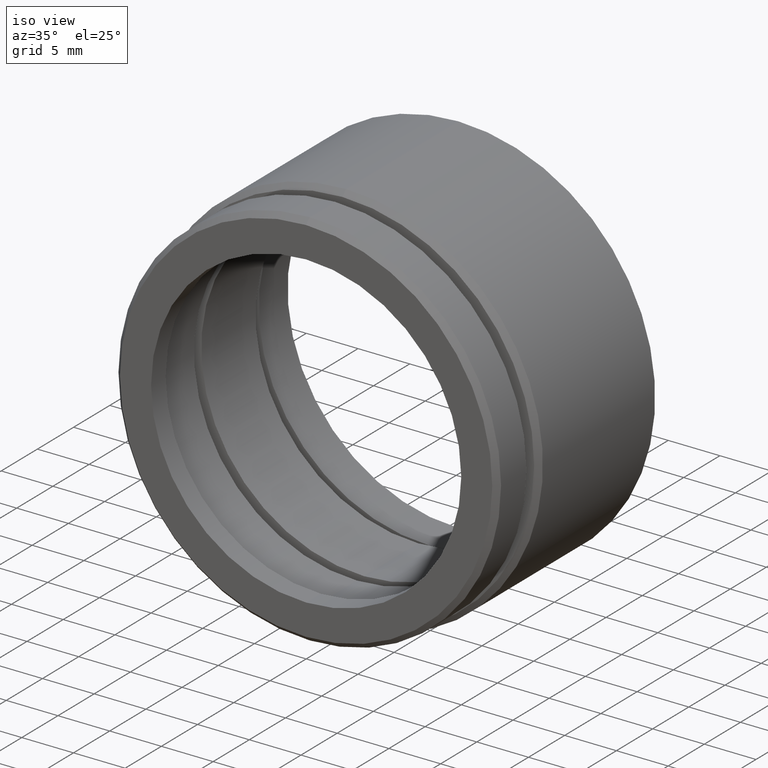
[diagram: clean part render]
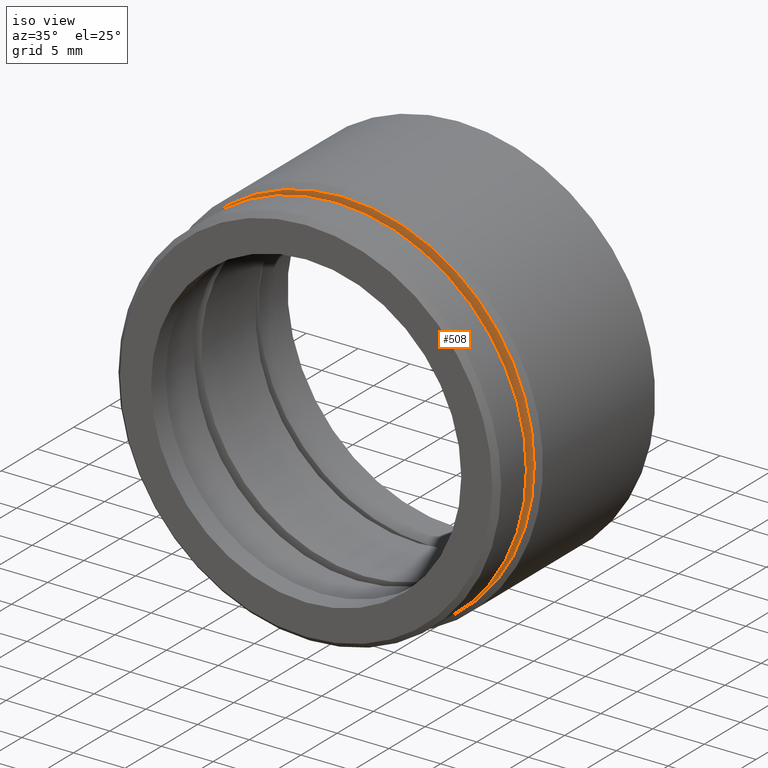
[diagram: same view with one face highlighted and labeled with its STEP entity id]
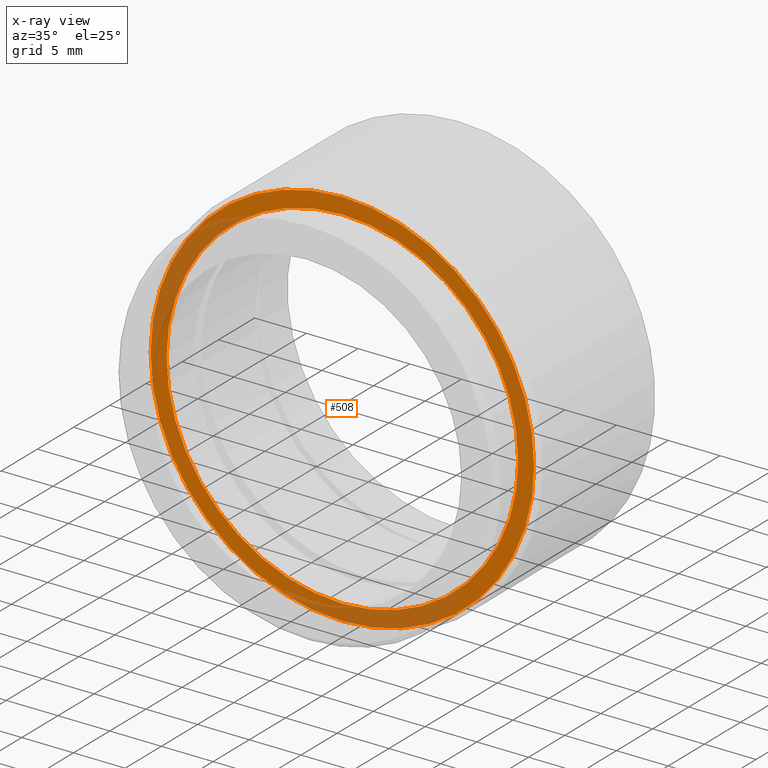
[diagram: x-ray of the same camera — body ghosted, the highlighted face saturated]
A machine part, iso view. The second image highlights one B-rep face of the part: STEP entity #508.
The next image is the same camera in x-ray: the body ghosted, the highlighted face saturated — about 27% of this face is hidden behind the body in this view.
In plain terms, the highlighted planar face has unit normal (0, -1, -0).
Its self-contained STEP definition (entity closure, byte-faithful):
#7 = CARTESIAN_POINT ( 'NONE',  ( 0.0000000000000000000, 5.000000000000000900, 0.0000000000000000000 ) ) ;
#16 = ORIENTED_EDGE ( 'NONE', *, *, #188, .F. ) ;
#35 = EDGE_LOOP ( 'NONE', ( #833, #708 ) ) ;
#114 = CARTESIAN_POINT ( 'NONE',  ( 17.00000000000000000, 5.000000000000000900, 0.0000000000000000000 ) ) ;
#152 = EDGE_CURVE ( 'NONE', #1020, #261, #603, .T. ) ;
#174 = DIRECTION ( 'NONE',  ( 0.0000000000000000000, 0.0000000000000000000, -1.000000000000000000 ) ) ;
#183 = DIRECTION ( 'NONE',  ( 0.0000000000000000000, 0.0000000000000000000, -1.000000000000000000 ) ) ;
#188 = EDGE_CURVE ( 'NONE', #385, #998, #985, .T. ) ;
#248 = EDGE_CURVE ( 'NONE', #261, #1020, #976, .T. ) ;
#261 = VERTEX_POINT ( 'NONE', #666 ) ;
#263 = ORIENTED_EDGE ( 'NONE', *, *, #640, .F. ) ;
#308 = CARTESIAN_POINT ( 'NONE',  ( 0.0000000000000000000, 5.000000000000000900, 18.55000000000000100 ) ) ;
#332 = CIRCLE ( 'NONE', #901, 17.00000000000000000 ) ;
#385 = VERTEX_POINT ( 'NONE', #397 ) ;
#397 = CARTESIAN_POINT ( 'NONE',  ( 2.081899558550500300E-015, 5.000000000000000900, 17.00000000000000000 ) ) ;
#425 = DIRECTION ( 'NONE',  ( 0.0000000000000000000, 0.0000000000000000000, -1.000000000000000000 ) ) ;
#457 = FACE_OUTER_BOUND ( 'NONE', #35, .T. ) ;
#508 = ADVANCED_FACE ( 'NONE', ( #457, #846 ), #638, .T. ) ;
#516 = AXIS2_PLACEMENT_3D ( 'NONE', #114, #671, #183 ) ;
#522 = DIRECTION ( 'NONE',  ( 0.0000000000000000000, 0.0000000000000000000, -1.000000000000000000 ) ) ;
#524 = CARTESIAN_POINT ( 'NONE',  ( 0.0000000000000000000, 5.000000000000000900, -17.00000000000000000 ) ) ;
#535 = DIRECTION ( 'NONE',  ( -0.0000000000000000000, -1.000000000000000000, -0.0000000000000000000 ) ) ;
#537 = CARTESIAN_POINT ( 'NONE',  ( 0.0000000000000000000, 5.000000000000000900, 0.0000000000000000000 ) ) ;
#569 = CARTESIAN_POINT ( 'NONE',  ( 0.0000000000000000000, 5.000000000000000900, 0.0000000000000000000 ) ) ;
#578 = CARTESIAN_POINT ( 'NONE',  ( 0.0000000000000000000, 5.000000000000000900, 0.0000000000000000000 ) ) ;
#590 = EDGE_LOOP ( 'NONE', ( #263, #16 ) ) ;
#591 = DIRECTION ( 'NONE',  ( -0.0000000000000000000, -1.000000000000000000, -0.0000000000000000000 ) ) ;
#596 = AXIS2_PLACEMENT_3D ( 'NONE', #7, #690, #912 ) ;
#603 = CIRCLE ( 'NONE', #768, 18.55000000000000100 ) ;
#638 = PLANE ( 'NONE',  #516 ) ;
#640 = EDGE_CURVE ( 'NONE', #998, #385, #332, .T. ) ;
#666 = CARTESIAN_POINT ( 'NONE',  ( 2.302335982397023900E-015, 5.000000000000000900, -18.55000000000000100 ) ) ;
#671 = DIRECTION ( 'NONE',  ( 0.0000000000000000000, -1.000000000000000000, -0.0000000000000000000 ) ) ;
#690 = DIRECTION ( 'NONE',  ( -0.0000000000000000000, -1.000000000000000000, -0.0000000000000000000 ) ) ;
#708 = ORIENTED_EDGE ( 'NONE', *, *, #248, .T. ) ;
#768 = AXIS2_PLACEMENT_3D ( 'NONE', #578, #591, #174 ) ;
#813 = AXIS2_PLACEMENT_3D ( 'NONE', #569, #1078, #425 ) ;
#833 = ORIENTED_EDGE ( 'NONE', *, *, #152, .T. ) ;
#846 = FACE_BOUND ( 'NONE', #590, .T. ) ;
#901 = AXIS2_PLACEMENT_3D ( 'NONE', #537, #535, #522 ) ;
#912 = DIRECTION ( 'NONE',  ( 0.0000000000000000000, 0.0000000000000000000, -1.000000000000000000 ) ) ;
#976 = CIRCLE ( 'NONE', #596, 18.55000000000000100 ) ;
#985 = CIRCLE ( 'NONE', #813, 17.00000000000000000 ) ;
#998 = VERTEX_POINT ( 'NONE', #524 ) ;
#1020 = VERTEX_POINT ( 'NONE', #308 ) ;
#1078 = DIRECTION ( 'NONE',  ( -0.0000000000000000000, -1.000000000000000000, -0.0000000000000000000 ) ) ;